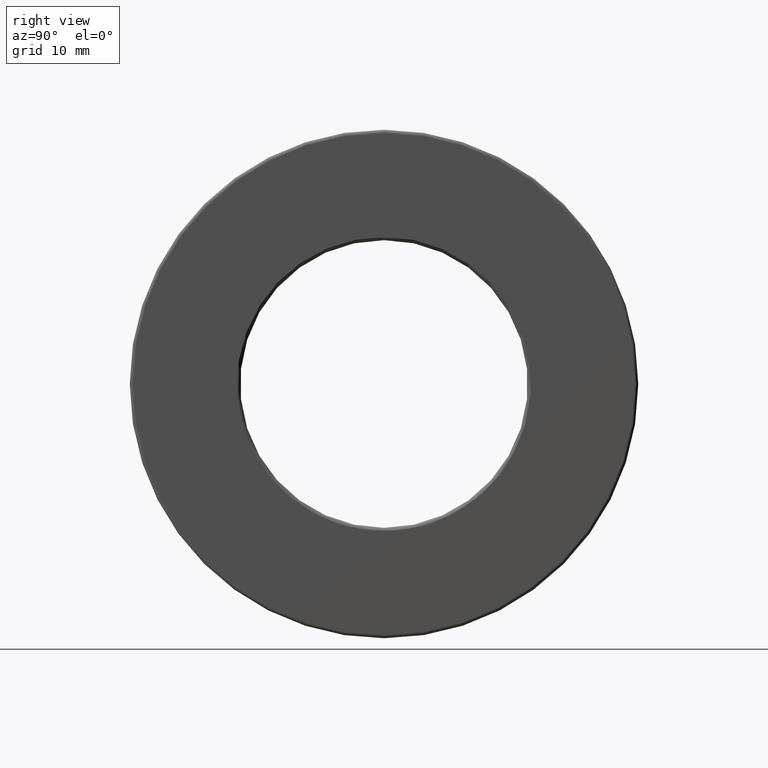
[diagram: clean part render]
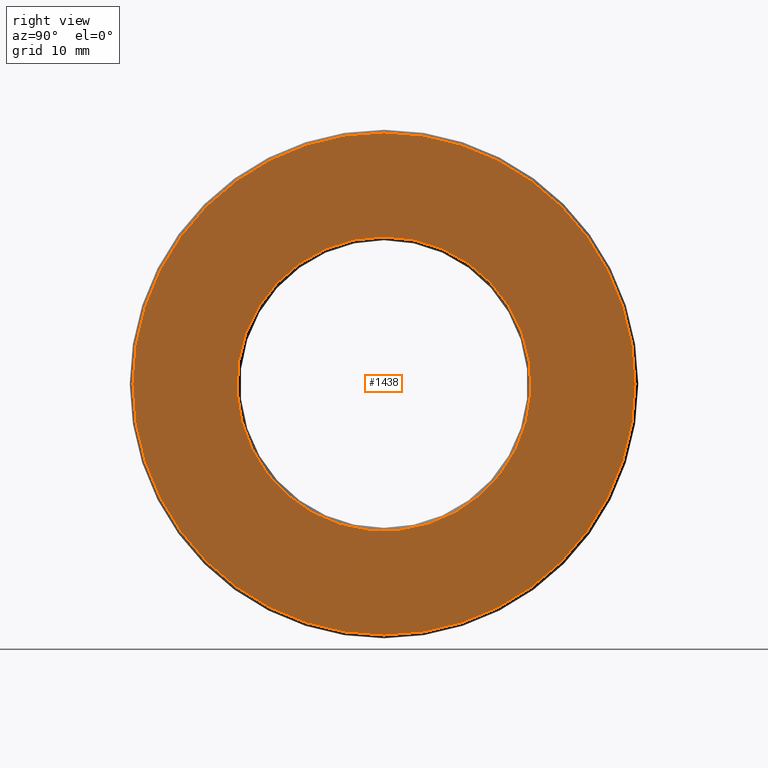
[diagram: same view with one face highlighted and labeled with its STEP entity id]
A machine part, right view. The second image highlights one B-rep face of the part: STEP entity #1438.
In plain terms, the highlighted planar face has unit normal (1, 0, 0).
Its self-contained STEP definition (entity closure, byte-faithful):
#4 = EDGE_CURVE ( 'NONE', #1179, #1179, #353, .T. ) ;
#254 = CARTESIAN_POINT ( 'NONE',  ( 0.4060000000000001400, 4.388250387448824400E-017, 0.0000000000000000000 ) ) ;
#353 = CIRCLE ( 'NONE', #1059, 0.8950000000000000200 ) ;
#370 = EDGE_LOOP ( 'NONE', ( #1224 ) ) ;
#427 = ORIENTED_EDGE ( 'NONE', *, *, #1147, .F. ) ;
#438 = FACE_OUTER_BOUND ( 'NONE', #553, .T. ) ;
#446 = CARTESIAN_POINT ( 'NONE',  ( 0.4060000000000001400, 0.0000000000000000000, 1.526875000000000600 ) ) ;
#500 = DIRECTION ( 'NONE',  ( -1.000000000000000000, -0.0000000000000000000, -0.0000000000000000000 ) ) ;
#553 = EDGE_LOOP ( 'NONE', ( #427 ) ) ;
#602 = DIRECTION ( 'NONE',  ( 0.0000000000000000000, 0.0000000000000000000, 1.000000000000000000 ) ) ;
#631 = CIRCLE ( 'NONE', #1232, 1.526875000000000600 ) ;
#663 = CARTESIAN_POINT ( 'NONE',  ( 0.4060000000000001900, 0.0000000000000000000, 0.8950000000000000200 ) ) ;
#693 = DIRECTION ( 'NONE',  ( 0.0000000000000000000, 0.0000000000000000000, -1.000000000000000000 ) ) ;
#738 = DIRECTION ( 'NONE',  ( 0.0000000000000000000, 0.0000000000000000000, 1.000000000000000000 ) ) ;
#863 = DIRECTION ( 'NONE',  ( -1.000000000000000000, -0.0000000000000000000, -0.0000000000000000000 ) ) ;
#904 = VERTEX_POINT ( 'NONE', #446 ) ;
#930 = PLANE ( 'NONE',  #1380 ) ;
#1059 = AXIS2_PLACEMENT_3D ( 'NONE', #1164, #500, #602 ) ;
#1114 = FACE_BOUND ( 'NONE', #370, .T. ) ;
#1147 = EDGE_CURVE ( 'NONE', #904, #904, #631, .T. ) ;
#1149 = DIRECTION ( 'NONE',  ( 1.000000000000000000, 0.0000000000000000000, 0.0000000000000000000 ) ) ;
#1164 = CARTESIAN_POINT ( 'NONE',  ( 0.4060000000000001900, 0.0000000000000000000, 0.0000000000000000000 ) ) ;
#1179 = VERTEX_POINT ( 'NONE', #663 ) ;
#1224 = ORIENTED_EDGE ( 'NONE', *, *, #4, .T. ) ;
#1232 = AXIS2_PLACEMENT_3D ( 'NONE', #1425, #863, #738 ) ;
#1380 = AXIS2_PLACEMENT_3D ( 'NONE', #254, #1149, #693 ) ;
#1425 = CARTESIAN_POINT ( 'NONE',  ( 0.4060000000000001400, 0.0000000000000000000, 0.0000000000000000000 ) ) ;
#1438 = ADVANCED_FACE ( 'NONE', ( #1114, #438 ), #930, .T. ) ;